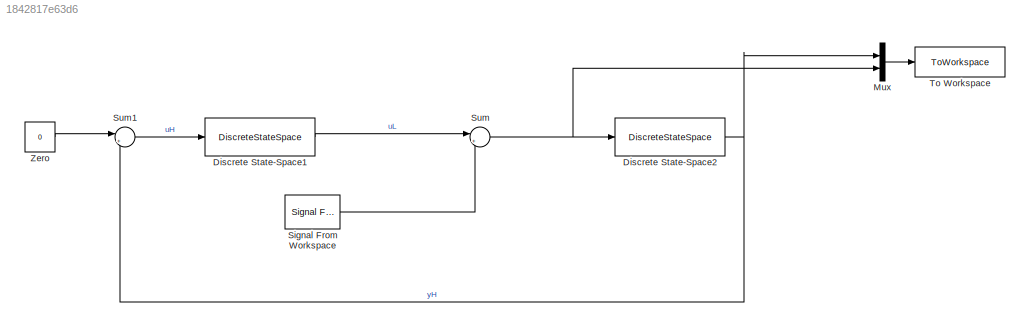
MODEL slx_1842817e63d6
KIND model
CONFIG AbsTol = auto
CONFIG EnableMultiTasking = off
CONFIG FixedStep = auto
CONFIG MaxStep = TsH/10
CONFIG MinStep = auto
CONFIG RelTol = 1e-3
CONFIG SampleTimeConstraint = Unconstrained
CONFIG SolverName = VariableStepAuto
CONFIG StartTime = 0.0
CONFIG StopTime = t(end)
BLOCK [DiscreteStateSpace] Discrete State-Space1
  A = Kd.A
  B = Kd.B
  C = Kd.C
  D = Kd.D
  SampleTime = Ts
BLOCK [DiscreteStateSpace] Discrete State-Space2
  A = ss(Pd).A
  B = ss(Pd).B
  C = ss(Pd).C
  D = ss(Pd).D
  SampleTime = Ts
BLOCK [Mux] Mux
  DisplayOption = bar
  Inputs = 2
  Ports = [2, 1]
BLOCK [Reference] Signal From Workspace  REF=dspsrcs4/Signal From
Workspace
  Ports = [0, 1]
  SourceBlock = dspsrcs4/Signal From\nWorkspace
  SourceProductBaseCode = DS
  SourceType = Signal From Workspace
BLOCK [Sum] Sum
  Inputs = |++
  Ports = [2, 1]
BLOCK [Sum] Sum1
  Inputs = |+-
  Ports = [2, 1]
BLOCK [ToWorkspace] To Workspace
  FixptAsFi = on
  MaxDataPoints = inf
  Ports = [1]
  SampleTime = Ts
  Save2DSignal = 2-D array (concatenate along first dimension)
  VariableName = data
BLOCK [Constant] Zero
  OutDataTypeStr = Inherit: Inherit via back propagation
  Value = 0
LINE Discrete State-Space1:1 -> Sum:1
NET Discrete State-Space2:1 -> Mux:1, Sum1:2
LINE Mux:1 -> To Workspace:1
LINE Signal From Workspace:1 -> Sum:2
LINE Sum1:1 -> Discrete State-Space1:1
NET Sum:1 -> Discrete State-Space2:1, Mux:2
LINE Zero:1 -> Sum1:1
note: NET lines group one-source signal fan-out (src -> all destinations, sorted); 1:1 wires keep LINE
